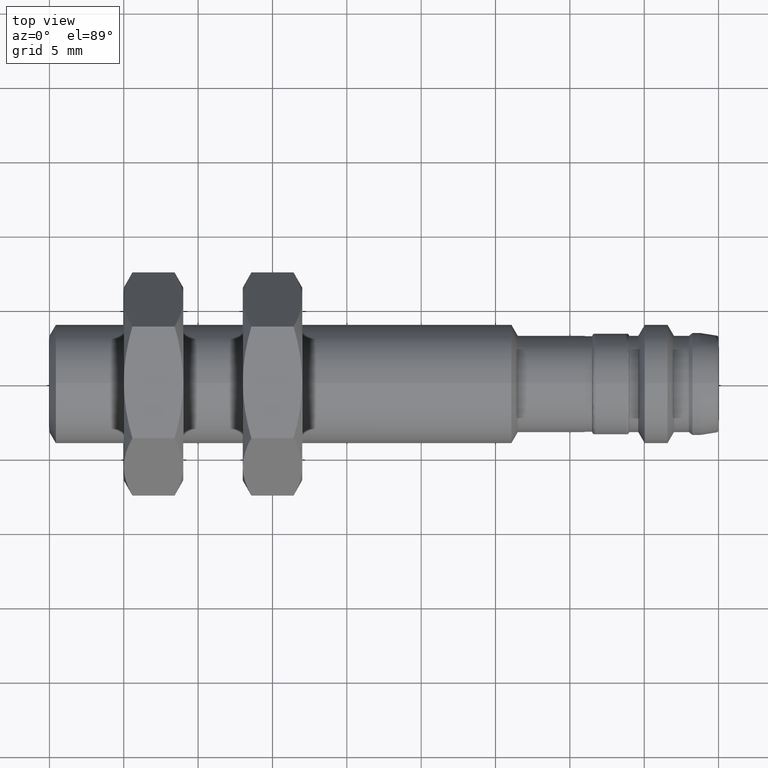
[diagram: clean part render]
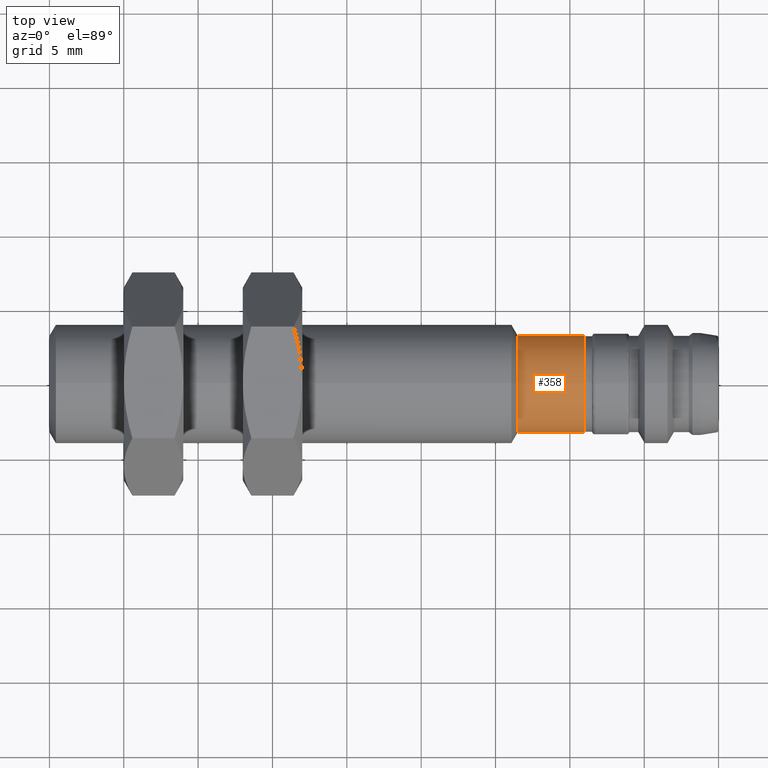
[diagram: same view with one face highlighted and labeled with its STEP entity id]
A machine part, top view. The second image highlights one B-rep face of the part: STEP entity #358.
In plain terms, the highlighted cylindrical surface (bore or boss wall) has radius 3.25 mm, axis along (-1, 0, 0).
Its self-contained STEP definition (entity closure, byte-faithful):
#174 = EDGE_LOOP ( 'NONE', ( #644 ) ) ;
#181 = CYLINDRICAL_SURFACE ( 'NONE', #1627, 0.1279527559055118335 ) ;
#191 = EDGE_LOOP ( 'NONE', ( #1272 ) ) ;
#206 = CIRCLE ( 'NONE', #276, 0.1279527559055118335 ) ;
#269 = CARTESIAN_POINT ( 'NONE',  ( 1.240157480314727945, 0.0000000000000000000, 0.0000000000000000000 ) ) ;
#276 = AXIS2_PLACEMENT_3D ( 'NONE', #1698, #1181, #1849 ) ;
#322 = DIRECTION ( 'NONE',  ( 0.0000000000000000000, 0.0000000000000000000, 1.000000000000000000 ) ) ;
#358 = ADVANCED_FACE ( 'NONE', ( #1105, #1738 ), #181, .T. ) ;
#399 = DIRECTION ( 'NONE',  ( -1.000000000000000000, 0.0000000000000000000, 0.0000000000000000000 ) ) ;
#467 = CIRCLE ( 'NONE', #793, 0.1279527559047240748 ) ;
#630 = EDGE_CURVE ( 'NONE', #1315, #1315, #206, .T. ) ;
#632 = EDGE_CURVE ( 'NONE', #1326, #1326, #467, .T. ) ;
#644 = ORIENTED_EDGE ( 'NONE', *, *, #632, .F. ) ;
#645 = CARTESIAN_POINT ( 'NONE',  ( 1.240157480314727945, 0.0000000000000000000, 0.1279527559047240748 ) ) ;
#685 = CARTESIAN_POINT ( 'NONE',  ( 1.417322834645669438, 0.0000000000000000000, 0.1279527559055118335 ) ) ;
#793 = AXIS2_PLACEMENT_3D ( 'NONE', #269, #399, #1377 ) ;
#805 = CARTESIAN_POINT ( 'NONE',  ( 1.771653543307086576, 0.0000000000000000000, 0.0000000000000000000 ) ) ;
#1105 = FACE_OUTER_BOUND ( 'NONE', #174, .T. ) ;
#1181 = DIRECTION ( 'NONE',  ( -1.000000000000000000, 0.0000000000000000000, 0.0000000000000000000 ) ) ;
#1272 = ORIENTED_EDGE ( 'NONE', *, *, #630, .T. ) ;
#1315 = VERTEX_POINT ( 'NONE', #685 ) ;
#1326 = VERTEX_POINT ( 'NONE', #645 ) ;
#1377 = DIRECTION ( 'NONE',  ( 0.0000000000000000000, 0.0000000000000000000, 1.000000000000000000 ) ) ;
#1627 = AXIS2_PLACEMENT_3D ( 'NONE', #805, #1869, #322 ) ;
#1698 = CARTESIAN_POINT ( 'NONE',  ( 1.417322834645669438, 0.0000000000000000000, 0.0000000000000000000 ) ) ;
#1738 = FACE_OUTER_BOUND ( 'NONE', #191, .T. ) ;
#1849 = DIRECTION ( 'NONE',  ( 0.0000000000000000000, 0.0000000000000000000, 1.000000000000000000 ) ) ;
#1869 = DIRECTION ( 'NONE',  ( -1.000000000000000000, 0.0000000000000000000, 0.0000000000000000000 ) ) ;